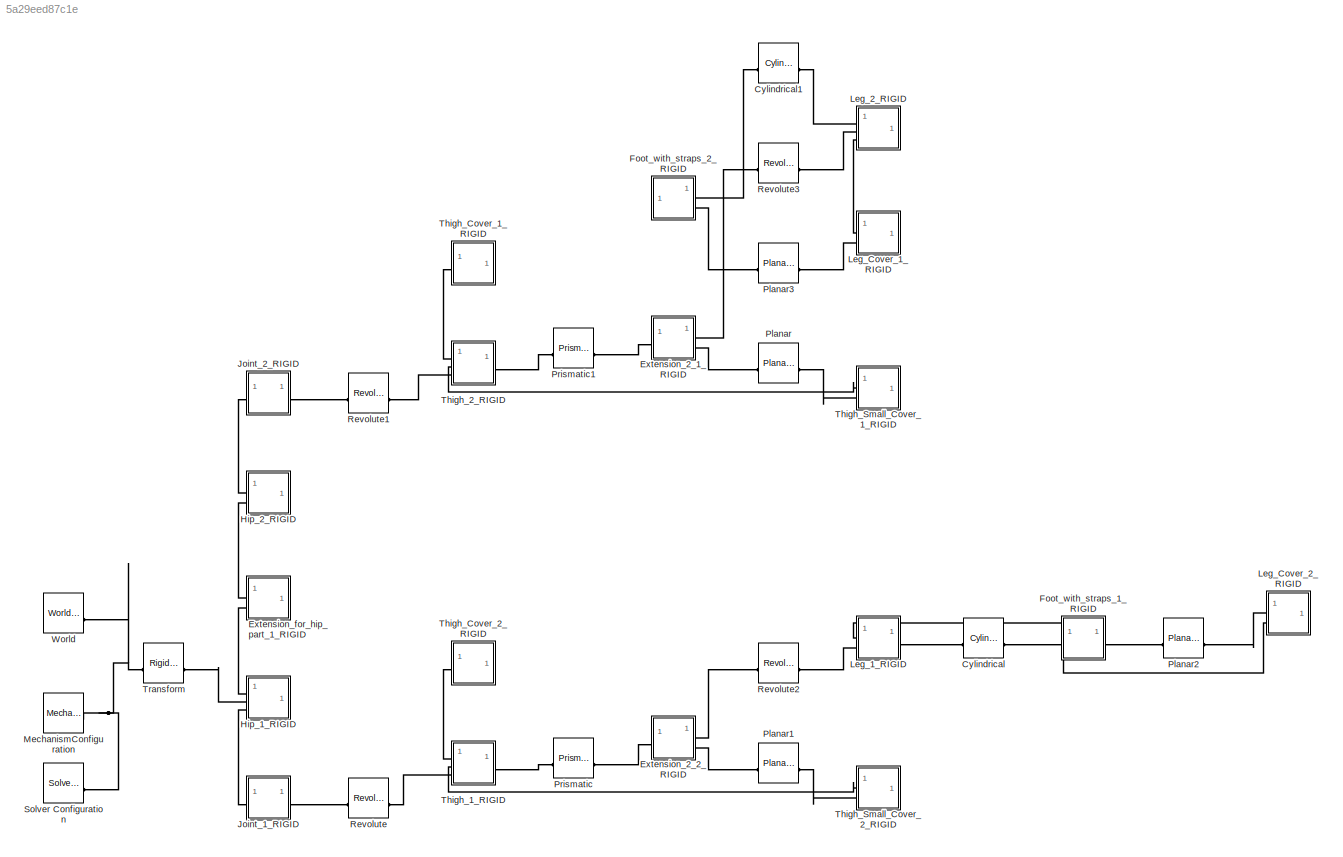
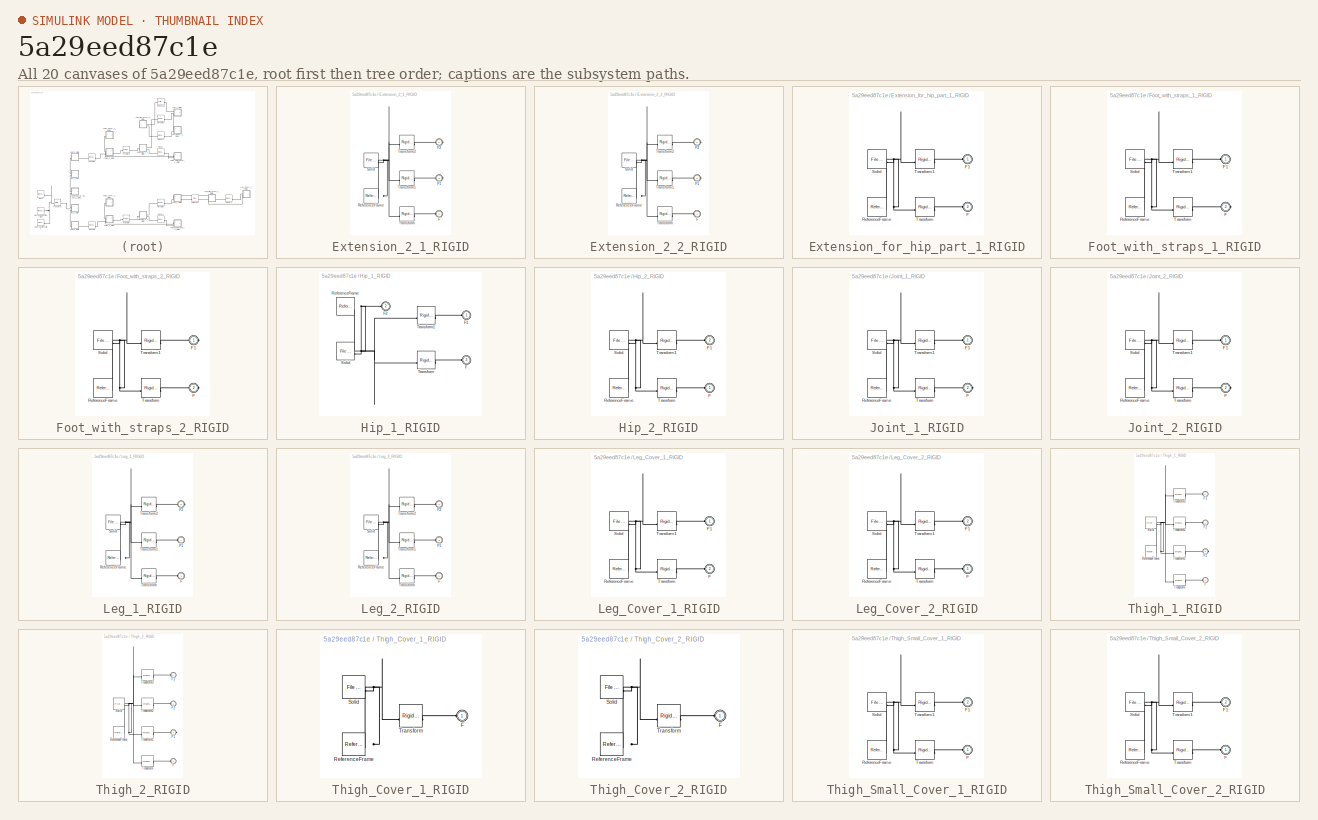
[diagram: thumbnail index - all 20 canvases of the model, root first then tree order]
MODEL slx_5a29eed87c1e
KIND model
CONFIG AbsTol = auto
CONFIG EnableMultiTasking = off
CONFIG FixedStep = auto
CONFIG MaxStep = auto
CONFIG MinStep = auto
CONFIG RelTol = 1e-3
CONFIG SampleTimeConstraint = Unconstrained
CONFIG SolverName = VariableStepAuto
CONFIG StartTime = 0.0
CONFIG StopTime = 10.0
WORKSPACE source: external: MATLAB File  (data not in archive)
BLOCK [Reference] Cylindrical  REF=sm_lib/Joints/Cylindrical
Joint
  SourceBlock = sm_lib/Joints/Cylindrical\nJoint
  SourceType = Cylindrical\nJoint
BLOCK [Reference] Cylindrical1  REF=sm_lib/Joints/Cylindrical
Joint
  SourceBlock = sm_lib/Joints/Cylindrical\nJoint
  SourceType = Cylindrical\nJoint
BLOCK [SubSystem] Extension_2_1_RIGID
BLOCK [PMIOPort] Extension_2_1_RIGID/F
  Side = Left
BLOCK [PMIOPort] Extension_2_1_RIGID/F1
  Port = 3
  Side = Right
BLOCK [PMIOPort] Extension_2_1_RIGID/F2
  Port = 2
  Side = Right
BLOCK [Reference] Extension_2_1_RIGID/ReferenceFrame  REF=sm_lib/Frames and
Transforms/Reference
Frame
  SourceBlock = sm_lib/Frames and\nTransforms/Reference\nFrame
  SourceType = Reference\nFrame
BLOCK [Reference] Extension_2_1_RIGID/Solid  REF=sm_lib/Body Elements/File Solid
  SourceBlock = sm_lib/Body Elements/File Solid
  SourceType = File Solid
BLOCK [Reference] Extension_2_1_RIGID/Transform  REF=sm_lib/Frames and
Transforms/Rigid
Transform
  SourceBlock = sm_lib/Frames and\nTransforms/Rigid\nTransform
  SourceType = Rigid\nTransform
BLOCK [Reference] Extension_2_1_RIGID/Transform1  REF=sm_lib/Frames and
Transforms/Rigid
Transform
  SourceBlock = sm_lib/Frames and\nTransforms/Rigid\nTransform
  SourceType = Rigid\nTransform
BLOCK [Reference] Extension_2_1_RIGID/Transform2  REF=sm_lib/Frames and
Transforms/Rigid
Transform
  SourceBlock = sm_lib/Frames and\nTransforms/Rigid\nTransform
  SourceType = Rigid\nTransform
BLOCK [SubSystem] Extension_2_2_RIGID
BLOCK [PMIOPort] Extension_2_2_RIGID/F
  Side = Left
BLOCK [PMIOPort] Extension_2_2_RIGID/F1
  Port = 3
  Side = Right
BLOCK [PMIOPort] Extension_2_2_RIGID/F2
  Port = 2
  Side = Right
BLOCK [Reference] Extension_2_2_RIGID/ReferenceFrame  REF=sm_lib/Frames and
Transforms/Reference
Frame
  SourceBlock = sm_lib/Frames and\nTransforms/Reference\nFrame
  SourceType = Reference\nFrame
BLOCK [Reference] Extension_2_2_RIGID/Solid  REF=sm_lib/Body Elements/File Solid
  SourceBlock = sm_lib/Body Elements/File Solid
  SourceType = File Solid
BLOCK [Reference] Extension_2_2_RIGID/Transform  REF=sm_lib/Frames and
Transforms/Rigid
Transform
  SourceBlock = sm_lib/Frames and\nTransforms/Rigid\nTransform
  SourceType = Rigid\nTransform
BLOCK [Reference] Extension_2_2_RIGID/Transform1  REF=sm_lib/Frames and
Transforms/Rigid
Transform
  SourceBlock = sm_lib/Frames and\nTransforms/Rigid\nTransform
  SourceType = Rigid\nTransform
BLOCK [Reference] Extension_2_2_RIGID/Transform2  REF=sm_lib/Frames and
Transforms/Rigid
Transform
  SourceBlock = sm_lib/Frames and\nTransforms/Rigid\nTransform
  SourceType = Rigid\nTransform
BLOCK [SubSystem] Extension_for_hip_part_1_RIGID
BLOCK [PMIOPort] Extension_for_hip_part_1_RIGID/F
  Port = 2
  Side = Left
BLOCK [PMIOPort] Extension_for_hip_part_1_RIGID/F1
  Side = Left
BLOCK [Reference] Extension_for_hip_part_1_RIGID/ReferenceFrame  REF=sm_lib/Frames and
Transforms/Reference
Frame
  SourceBlock = sm_lib/Frames and\nTransforms/Reference\nFrame
  SourceType = Reference\nFrame
BLOCK [Reference] Extension_for_hip_part_1_RIGID/Solid  REF=sm_lib/Body Elements/File Solid
  SourceBlock = sm_lib/Body Elements/File Solid
  SourceType = File Solid
BLOCK [Reference] Extension_for_hip_part_1_RIGID/Transform  REF=sm_lib/Frames and
Transforms/Rigid
Transform
  SourceBlock = sm_lib/Frames and\nTransforms/Rigid\nTransform
  SourceType = Rigid\nTransform
BLOCK [Reference] Extension_for_hip_part_1_RIGID/Transform1  REF=sm_lib/Frames and
Transforms/Rigid
Transform
  SourceBlock = sm_lib/Frames and\nTransforms/Rigid\nTransform
  SourceType = Rigid\nTransform
BLOCK [SubSystem] Foot_with_straps_1_RIGID
BLOCK [PMIOPort] Foot_with_straps_1_RIGID/F
  Port = 2
  Side = Right
BLOCK [PMIOPort] Foot_with_straps_1_RIGID/F1
  Side = Left
BLOCK [Reference] Foot_with_straps_1_RIGID/ReferenceFrame  REF=sm_lib/Frames and
Transforms/Reference
Frame
  SourceBlock = sm_lib/Frames and\nTransforms/Reference\nFrame
  SourceType = Reference\nFrame
BLOCK [Reference] Foot_with_straps_1_RIGID/Solid  REF=sm_lib/Body Elements/File Solid
  SourceBlock = sm_lib/Body Elements/File Solid
  SourceType = File Solid
BLOCK [Reference] Foot_with_straps_1_RIGID/Transform  REF=sm_lib/Frames and
Transforms/Rigid
Transform
  SourceBlock = sm_lib/Frames and\nTransforms/Rigid\nTransform
  SourceType = Rigid\nTransform
BLOCK [Reference] Foot_with_straps_1_RIGID/Transform1  REF=sm_lib/Frames and
Transforms/Rigid
Transform
  SourceBlock = sm_lib/Frames and\nTransforms/Rigid\nTransform
  SourceType = Rigid\nTransform
BLOCK [SubSystem] Foot_with_straps_2_RIGID
BLOCK [PMIOPort] Foot_with_straps_2_RIGID/F
  Port = 2
  Side = Right
BLOCK [PMIOPort] Foot_with_straps_2_RIGID/F1
  Side = Right
BLOCK [Reference] Foot_with_straps_2_RIGID/ReferenceFrame  REF=sm_lib/Frames and
Transforms/Reference
Frame
  SourceBlock = sm_lib/Frames and\nTransforms/Reference\nFrame
  SourceType = Reference\nFrame
BLOCK [Reference] Foot_with_straps_2_RIGID/Solid  REF=sm_lib/Body Elements/File Solid
  SourceBlock = sm_lib/Body Elements/File Solid
  SourceType = File Solid
BLOCK [Reference] Foot_with_straps_2_RIGID/Transform  REF=sm_lib/Frames and
Transforms/Rigid
Transform
  SourceBlock = sm_lib/Frames and\nTransforms/Rigid\nTransform
  SourceType = Rigid\nTransform
BLOCK [Reference] Foot_with_straps_2_RIGID/Transform1  REF=sm_lib/Frames and
Transforms/Rigid
Transform
  SourceBlock = sm_lib/Frames and\nTransforms/Rigid\nTransform
  SourceType = Rigid\nTransform
BLOCK [SubSystem] Hip_1_RIGID
BLOCK [PMIOPort] Hip_1_RIGID/F
  Port = 3
  Side = Left
BLOCK [PMIOPort] Hip_1_RIGID/F1
  Side = Left
BLOCK [PMIOPort] Hip_1_RIGID/F2
  Port = 2
  Side = Left
BLOCK [Reference] Hip_1_RIGID/ReferenceFrame  REF=sm_lib/Frames and
Transforms/Reference
Frame
  SourceBlock = sm_lib/Frames and\nTransforms/Reference\nFrame
  SourceType = Reference\nFrame
BLOCK [Reference] Hip_1_RIGID/Solid  REF=sm_lib/Body Elements/File Solid
  SourceBlock = sm_lib/Body Elements/File Solid
  SourceType = File Solid
BLOCK [Reference] Hip_1_RIGID/Transform  REF=sm_lib/Frames and
Transforms/Rigid
Transform
  SourceBlock = sm_lib/Frames and\nTransforms/Rigid\nTransform
  SourceType = Rigid\nTransform
BLOCK [Reference] Hip_1_RIGID/Transform1  REF=sm_lib/Frames and
Transforms/Rigid
Transform
  SourceBlock = sm_lib/Frames and\nTransforms/Rigid\nTransform
  SourceType = Rigid\nTransform
BLOCK [SubSystem] Hip_2_RIGID
BLOCK [PMIOPort] Hip_2_RIGID/F
  Side = Left
BLOCK [PMIOPort] Hip_2_RIGID/F1
  Port = 2
  Side = Left
BLOCK [Reference] Hip_2_RIGID/ReferenceFrame  REF=sm_lib/Frames and
Transforms/Reference
Frame
  SourceBlock = sm_lib/Frames and\nTransforms/Reference\nFrame
  SourceType = Reference\nFrame
BLOCK [Reference] Hip_2_RIGID/Solid  REF=sm_lib/Body Elements/File Solid
  SourceBlock = sm_lib/Body Elements/File Solid
  SourceType = File Solid
BLOCK [Reference] Hip_2_RIGID/Transform  REF=sm_lib/Frames and
Transforms/Rigid
Transform
  SourceBlock = sm_lib/Frames and\nTransforms/Rigid\nTransform
  SourceType = Rigid\nTransform
BLOCK [Reference] Hip_2_RIGID/Transform1  REF=sm_lib/Frames and
Transforms/Rigid
Transform
  SourceBlock = sm_lib/Frames and\nTransforms/Rigid\nTransform
  SourceType = Rigid\nTransform
BLOCK [SubSystem] Joint_1_RIGID
BLOCK [PMIOPort] Joint_1_RIGID/F
  Port = 2
  Side = Right
BLOCK [PMIOPort] Joint_1_RIGID/F1
  Side = Left
BLOCK [Reference] Joint_1_RIGID/ReferenceFrame  REF=sm_lib/Frames and
Transforms/Reference
Frame
  SourceBlock = sm_lib/Frames and\nTransforms/Reference\nFrame
  SourceType = Reference\nFrame
BLOCK [Reference] Joint_1_RIGID/Solid  REF=sm_lib/Body Elements/File Solid
  SourceBlock = sm_lib/Body Elements/File Solid
  SourceType = File Solid
BLOCK [Reference] Joint_1_RIGID/Transform  REF=sm_lib/Frames and
Transforms/Rigid
Transform
  SourceBlock = sm_lib/Frames and\nTransforms/Rigid\nTransform
  SourceType = Rigid\nTransform
BLOCK [Reference] Joint_1_RIGID/Transform1  REF=sm_lib/Frames and
Transforms/Rigid
Transform
  SourceBlock = sm_lib/Frames and\nTransforms/Rigid\nTransform
  SourceType = Rigid\nTransform
BLOCK [SubSystem] Joint_2_RIGID
BLOCK [PMIOPort] Joint_2_RIGID/F
  Port = 2
  Side = Right
BLOCK [PMIOPort] Joint_2_RIGID/F1
  Side = Left
BLOCK [Reference] Joint_2_RIGID/ReferenceFrame  REF=sm_lib/Frames and
Transforms/Reference
Frame
  SourceBlock = sm_lib/Frames and\nTransforms/Reference\nFrame
  SourceType = Reference\nFrame
BLOCK [Reference] Joint_2_RIGID/Solid  REF=sm_lib/Body Elements/File Solid
  SourceBlock = sm_lib/Body Elements/File Solid
  SourceType = File Solid
BLOCK [Reference] Joint_2_RIGID/Transform  REF=sm_lib/Frames and
Transforms/Rigid
Transform
  SourceBlock = sm_lib/Frames and\nTransforms/Rigid\nTransform
  SourceType = Rigid\nTransform
BLOCK [Reference] Joint_2_RIGID/Transform1  REF=sm_lib/Frames and
Transforms/Rigid
Transform
  SourceBlock = sm_lib/Frames and\nTransforms/Rigid\nTransform
  SourceType = Rigid\nTransform
BLOCK [SubSystem] Leg_1_RIGID
BLOCK [PMIOPort] Leg_1_RIGID/F
  Port = 2
  Side = Left
BLOCK [PMIOPort] Leg_1_RIGID/F1
  Side = Left
BLOCK [PMIOPort] Leg_1_RIGID/F2
  Port = 3
  Side = Right
BLOCK [Reference] Leg_1_RIGID/ReferenceFrame  REF=sm_lib/Frames and
Transforms/Reference
Frame
  SourceBlock = sm_lib/Frames and\nTransforms/Reference\nFrame
  SourceType = Reference\nFrame
BLOCK [Reference] Leg_1_RIGID/Solid  REF=sm_lib/Body Elements/File Solid
  SourceBlock = sm_lib/Body Elements/File Solid
  SourceType = File Solid
BLOCK [Reference] Leg_1_RIGID/Transform  REF=sm_lib/Frames and
Transforms/Rigid
Transform
  SourceBlock = sm_lib/Frames and\nTransforms/Rigid\nTransform
  SourceType = Rigid\nTransform
BLOCK [Reference] Leg_1_RIGID/Transform1  REF=sm_lib/Frames and
Transforms/Rigid
Transform
  SourceBlock = sm_lib/Frames and\nTransforms/Rigid\nTransform
  SourceType = Rigid\nTransform
BLOCK [Reference] Leg_1_RIGID/Transform2  REF=sm_lib/Frames and
Transforms/Rigid
Transform
  SourceBlock = sm_lib/Frames and\nTransforms/Rigid\nTransform
  SourceType = Rigid\nTransform
BLOCK [SubSystem] Leg_2_RIGID
BLOCK [PMIOPort] Leg_2_RIGID/F
  Port = 2
  Side = Left
BLOCK [PMIOPort] Leg_2_RIGID/F1
  Port = 3
  Side = Left
BLOCK [PMIOPort] Leg_2_RIGID/F2
  Side = Left
BLOCK [Reference] Leg_2_RIGID/ReferenceFrame  REF=sm_lib/Frames and
Transforms/Reference
Frame
  SourceBlock = sm_lib/Frames and\nTransforms/Reference\nFrame
  SourceType = Reference\nFrame
BLOCK [Reference] Leg_2_RIGID/Solid  REF=sm_lib/Body Elements/File Solid
  SourceBlock = sm_lib/Body Elements/File Solid
  SourceType = File Solid
BLOCK [Reference] Leg_2_RIGID/Transform  REF=sm_lib/Frames and
Transforms/Rigid
Transform
  SourceBlock = sm_lib/Frames and\nTransforms/Rigid\nTransform
  SourceType = Rigid\nTransform
BLOCK [Reference] Leg_2_RIGID/Transform1  REF=sm_lib/Frames and
Transforms/Rigid
Transform
  SourceBlock = sm_lib/Frames and\nTransforms/Rigid\nTransform
  SourceType = Rigid\nTransform
BLOCK [Reference] Leg_2_RIGID/Transform2  REF=sm_lib/Frames and
Transforms/Rigid
Transform
  SourceBlock = sm_lib/Frames and\nTransforms/Rigid\nTransform
  SourceType = Rigid\nTransform
BLOCK [SubSystem] Leg_Cover_1_RIGID
BLOCK [PMIOPort] Leg_Cover_1_RIGID/F
  Port = 2
  Side = Left
BLOCK [PMIOPort] Leg_Cover_1_RIGID/F1
  Side = Left
BLOCK [Reference] Leg_Cover_1_RIGID/ReferenceFrame  REF=sm_lib/Frames and
Transforms/Reference
Frame
  SourceBlock = sm_lib/Frames and\nTransforms/Reference\nFrame
  SourceType = Reference\nFrame
BLOCK [Reference] Leg_Cover_1_RIGID/Solid  REF=sm_lib/Body Elements/File Solid
  SourceBlock = sm_lib/Body Elements/File Solid
  SourceType = File Solid
BLOCK [Reference] Leg_Cover_1_RIGID/Transform  REF=sm_lib/Frames and
Transforms/Rigid
Transform
  SourceBlock = sm_lib/Frames and\nTransforms/Rigid\nTransform
  SourceType = Rigid\nTransform
BLOCK [Reference] Leg_Cover_1_RIGID/Transform1  REF=sm_lib/Frames and
Transforms/Rigid
Transform
  SourceBlock = sm_lib/Frames and\nTransforms/Rigid\nTransform
  SourceType = Rigid\nTransform
BLOCK [SubSystem] Leg_Cover_2_RIGID
BLOCK [PMIOPort] Leg_Cover_2_RIGID/F
  Side = Left
BLOCK [PMIOPort] Leg_Cover_2_RIGID/F1
  Port = 2
  Side = Left
BLOCK [Reference] Leg_Cover_2_RIGID/ReferenceFrame  REF=sm_lib/Frames and
Transforms/Reference
Frame
  SourceBlock = sm_lib/Frames and\nTransforms/Reference\nFrame
  SourceType = Reference\nFrame
BLOCK [Reference] Leg_Cover_2_RIGID/Solid  REF=sm_lib/Body Elements/File Solid
  SourceBlock = sm_lib/Body Elements/File Solid
  SourceType = File Solid
BLOCK [Reference] Leg_Cover_2_RIGID/Transform  REF=sm_lib/Frames and
Transforms/Rigid
Transform
  SourceBlock = sm_lib/Frames and\nTransforms/Rigid\nTransform
  SourceType = Rigid\nTransform
BLOCK [Reference] Leg_Cover_2_RIGID/Transform1  REF=sm_lib/Frames and
Transforms/Rigid
Transform
  SourceBlock = sm_lib/Frames and\nTransforms/Rigid\nTransform
  SourceType = Rigid\nTransform
BLOCK [Reference] MechanismConfiguration  REF=sm_lib/Utilities/Mechanism
Configuration
  SourceBlock = sm_lib/Utilities/Mechanism\nConfiguration
  SourceType = Mechanism\nConfiguration
BLOCK [Reference] Planar  REF=sm_lib/Joints/Planar Joint
  SourceBlock = sm_lib/Joints/Planar Joint
  SourceType = Planar Joint
BLOCK [Reference] Planar1  REF=sm_lib/Joints/Planar Joint
  SourceBlock = sm_lib/Joints/Planar Joint
  SourceType = Planar Joint
BLOCK [Reference] Planar2  REF=sm_lib/Joints/Planar Joint
  SourceBlock = sm_lib/Joints/Planar Joint
  SourceType = Planar Joint
BLOCK [Reference] Planar3  REF=sm_lib/Joints/Planar Joint
  SourceBlock = sm_lib/Joints/Planar Joint
  SourceType = Planar Joint
BLOCK [Reference] Prismatic  REF=sm_lib/Joints/Prismatic
Joint
  SourceBlock = sm_lib/Joints/Prismatic\nJoint
  SourceType = Prismatic\nJoint
BLOCK [Reference] Prismatic1  REF=sm_lib/Joints/Prismatic
Joint
  SourceBlock = sm_lib/Joints/Prismatic\nJoint
  SourceType = Prismatic\nJoint
BLOCK [Reference] Revolute  REF=sm_lib/Joints/Revolute Joint
  SourceBlock = sm_lib/Joints/Revolute Joint
  SourceType = Revolute Joint
BLOCK [Reference] Revolute1  REF=sm_lib/Joints/Revolute Joint
  SourceBlock = sm_lib/Joints/Revolute Joint
  SourceType = Revolute Joint
BLOCK [Reference] Revolute2  REF=sm_lib/Joints/Revolute Joint
  SourceBlock = sm_lib/Joints/Revolute Joint
  SourceType = Revolute Joint
BLOCK [Reference] Revolute3  REF=sm_lib/Joints/Revolute Joint
  SourceBlock = sm_lib/Joints/Revolute Joint
  SourceType = Revolute Joint
BLOCK [Reference] Solver Configuration  REF=nesl_utility/Solver
Configuration
  SourceBlock = nesl_utility/Solver\nConfiguration
  SourceType = Solver\nConfiguration
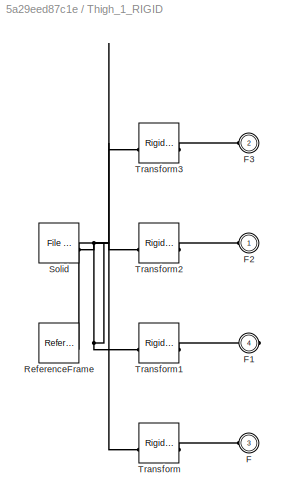
BLOCK [SubSystem] Thigh_1_RIGID
BLOCK [PMIOPort] Thigh_1_RIGID/F
  Port = 3
  Side = Left
BLOCK [PMIOPort] Thigh_1_RIGID/F1
  Port = 4
  Side = Right
BLOCK [PMIOPort] Thigh_1_RIGID/F2
  Side = Left
BLOCK [PMIOPort] Thigh_1_RIGID/F3
  Port = 2
  Side = Left
BLOCK [Reference] Thigh_1_RIGID/ReferenceFrame  REF=sm_lib/Frames and
Transforms/Reference
Frame
  SourceBlock = sm_lib/Frames and\nTransforms/Reference\nFrame
  SourceType = Reference\nFrame
BLOCK [Reference] Thigh_1_RIGID/Solid  REF=sm_lib/Body Elements/File Solid
  SourceBlock = sm_lib/Body Elements/File Solid
  SourceType = File Solid
BLOCK [Reference] Thigh_1_RIGID/Transform  REF=sm_lib/Frames and
Transforms/Rigid
Transform
  SourceBlock = sm_lib/Frames and\nTransforms/Rigid\nTransform
  SourceType = Rigid\nTransform
BLOCK [Reference] Thigh_1_RIGID/Transform1  REF=sm_lib/Frames and
Transforms/Rigid
Transform
  SourceBlock = sm_lib/Frames and\nTransforms/Rigid\nTransform
  SourceType = Rigid\nTransform
BLOCK [Reference] Thigh_1_RIGID/Transform2  REF=sm_lib/Frames and
Transforms/Rigid
Transform
  SourceBlock = sm_lib/Frames and\nTransforms/Rigid\nTransform
  SourceType = Rigid\nTransform
BLOCK [Reference] Thigh_1_RIGID/Transform3  REF=sm_lib/Frames and
Transforms/Rigid
Transform
  SourceBlock = sm_lib/Frames and\nTransforms/Rigid\nTransform
  SourceType = Rigid\nTransform
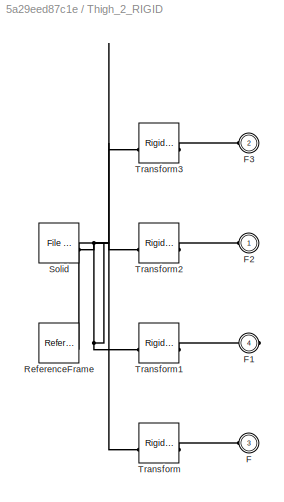
BLOCK [SubSystem] Thigh_2_RIGID
BLOCK [PMIOPort] Thigh_2_RIGID/F
  Port = 3
  Side = Left
BLOCK [PMIOPort] Thigh_2_RIGID/F1
  Port = 4
  Side = Right
BLOCK [PMIOPort] Thigh_2_RIGID/F2
  Side = Left
BLOCK [PMIOPort] Thigh_2_RIGID/F3
  Port = 2
  Side = Left
BLOCK [Reference] Thigh_2_RIGID/ReferenceFrame  REF=sm_lib/Frames and
Transforms/Reference
Frame
  SourceBlock = sm_lib/Frames and\nTransforms/Reference\nFrame
  SourceType = Reference\nFrame
BLOCK [Reference] Thigh_2_RIGID/Solid  REF=sm_lib/Body Elements/File Solid
  SourceBlock = sm_lib/Body Elements/File Solid
  SourceType = File Solid
BLOCK [Reference] Thigh_2_RIGID/Transform  REF=sm_lib/Frames and
Transforms/Rigid
Transform
  SourceBlock = sm_lib/Frames and\nTransforms/Rigid\nTransform
  SourceType = Rigid\nTransform
BLOCK [Reference] Thigh_2_RIGID/Transform1  REF=sm_lib/Frames and
Transforms/Rigid
Transform
  SourceBlock = sm_lib/Frames and\nTransforms/Rigid\nTransform
  SourceType = Rigid\nTransform
BLOCK [Reference] Thigh_2_RIGID/Transform2  REF=sm_lib/Frames and
Transforms/Rigid
Transform
  SourceBlock = sm_lib/Frames and\nTransforms/Rigid\nTransform
  SourceType = Rigid\nTransform
BLOCK [Reference] Thigh_2_RIGID/Transform3  REF=sm_lib/Frames and
Transforms/Rigid
Transform
  SourceBlock = sm_lib/Frames and\nTransforms/Rigid\nTransform
  SourceType = Rigid\nTransform
BLOCK [SubSystem] Thigh_Cover_1_RIGID
BLOCK [PMIOPort] Thigh_Cover_1_RIGID/F
  Side = Left
BLOCK [Reference] Thigh_Cover_1_RIGID/ReferenceFrame  REF=sm_lib/Frames and
Transforms/Reference
Frame
  SourceBlock = sm_lib/Frames and\nTransforms/Reference\nFrame
  SourceType = Reference\nFrame
BLOCK [Reference] Thigh_Cover_1_RIGID/Solid  REF=sm_lib/Body Elements/File Solid
  SourceBlock = sm_lib/Body Elements/File Solid
  SourceType = File Solid
BLOCK [Reference] Thigh_Cover_1_RIGID/Transform  REF=sm_lib/Frames and
Transforms/Rigid
Transform
  SourceBlock = sm_lib/Frames and\nTransforms/Rigid\nTransform
  SourceType = Rigid\nTransform
BLOCK [SubSystem] Thigh_Cover_2_RIGID
BLOCK [PMIOPort] Thigh_Cover_2_RIGID/F
  Side = Left
BLOCK [Reference] Thigh_Cover_2_RIGID/ReferenceFrame  REF=sm_lib/Frames and
Transforms/Reference
Frame
  SourceBlock = sm_lib/Frames and\nTransforms/Reference\nFrame
  SourceType = Reference\nFrame
BLOCK [Reference] Thigh_Cover_2_RIGID/Solid  REF=sm_lib/Body Elements/File Solid
  SourceBlock = sm_lib/Body Elements/File Solid
  SourceType = File Solid
BLOCK [Reference] Thigh_Cover_2_RIGID/Transform  REF=sm_lib/Frames and
Transforms/Rigid
Transform
  SourceBlock = sm_lib/Frames and\nTransforms/Rigid\nTransform
  SourceType = Rigid\nTransform
BLOCK [SubSystem] Thigh_Small_Cover_1_RIGID
BLOCK [PMIOPort] Thigh_Small_Cover_1_RIGID/F
  Side = Left
BLOCK [PMIOPort] Thigh_Small_Cover_1_RIGID/F1
  Port = 2
  Side = Left
BLOCK [Reference] Thigh_Small_Cover_1_RIGID/ReferenceFrame  REF=sm_lib/Frames and
Transforms/Reference
Frame
  SourceBlock = sm_lib/Frames and\nTransforms/Reference\nFrame
  SourceType = Reference\nFrame
BLOCK [Reference] Thigh_Small_Cover_1_RIGID/Solid  REF=sm_lib/Body Elements/File Solid
  SourceBlock = sm_lib/Body Elements/File Solid
  SourceType = File Solid
BLOCK [Reference] Thigh_Small_Cover_1_RIGID/Transform  REF=sm_lib/Frames and
Transforms/Rigid
Transform
  SourceBlock = sm_lib/Frames and\nTransforms/Rigid\nTransform
  SourceType = Rigid\nTransform
BLOCK [Reference] Thigh_Small_Cover_1_RIGID/Transform1  REF=sm_lib/Frames and
Transforms/Rigid
Transform
  SourceBlock = sm_lib/Frames and\nTransforms/Rigid\nTransform
  SourceType = Rigid\nTransform
BLOCK [SubSystem] Thigh_Small_Cover_2_RIGID
BLOCK [PMIOPort] Thigh_Small_Cover_2_RIGID/F
  Side = Left
BLOCK [PMIOPort] Thigh_Small_Cover_2_RIGID/F1
  Port = 2
  Side = Left
BLOCK [Reference] Thigh_Small_Cover_2_RIGID/ReferenceFrame  REF=sm_lib/Frames and
Transforms/Reference
Frame
  SourceBlock = sm_lib/Frames and\nTransforms/Reference\nFrame
  SourceType = Reference\nFrame
BLOCK [Reference] Thigh_Small_Cover_2_RIGID/Solid  REF=sm_lib/Body Elements/File Solid
  SourceBlock = sm_lib/Body Elements/File Solid
  SourceType = File Solid
BLOCK [Reference] Thigh_Small_Cover_2_RIGID/Transform  REF=sm_lib/Frames and
Transforms/Rigid
Transform
  SourceBlock = sm_lib/Frames and\nTransforms/Rigid\nTransform
  SourceType = Rigid\nTransform
BLOCK [Reference] Thigh_Small_Cover_2_RIGID/Transform1  REF=sm_lib/Frames and
Transforms/Rigid
Transform
  SourceBlock = sm_lib/Frames and\nTransforms/Rigid\nTransform
  SourceType = Rigid\nTransform
BLOCK [Reference] Transform  REF=sm_lib/Frames and
Transforms/Rigid
Transform
  SourceBlock = sm_lib/Frames and\nTransforms/Rigid\nTransform
  SourceType = Rigid\nTransform
BLOCK [Reference] World  REF=sm_lib/Frames and
Transforms/World Frame
  SourceBlock = sm_lib/Frames and\nTransforms/World Frame
  SourceType = World Frame
PLINE Cylindrical1:LConn1 -- Foot_with_straps_2_RIGID:RConn1
PLINE Cylindrical1:RConn1 -- Leg_2_RIGID:LConn1
PLINE Cylindrical:LConn1 -- Leg_1_RIGID:RConn1
PLINE Cylindrical:RConn1 -- Foot_with_straps_1_RIGID:LConn1
PLINE Extension_2_1_RIGID/F1:RConn1 -- Extension_2_1_RIGID/Transform1:RConn1
PLINE Extension_2_1_RIGID/F2:RConn1 -- Extension_2_1_RIGID/Transform2:RConn1
PLINE Extension_2_1_RIGID/F:RConn1 -- Extension_2_1_RIGID/Transform:RConn1
PNET net1: Extension_2_1_RIGID/ReferenceFrame:RConn1 -- Extension_2_1_RIGID/Solid:RConn1 -- Extension_2_1_RIGID/Transform1:LConn1 -- Extension_2_1_RIGID/Transform2:LConn1 -- Extension_2_1_RIGID/Transform:LConn1
PLINE Extension_2_1_RIGID:LConn1 -- Prismatic1:RConn1
PLINE Extension_2_1_RIGID:RConn1 -- Revolute3:LConn1
PLINE Extension_2_1_RIGID:RConn2 -- Planar:LConn1
PLINE Extension_2_2_RIGID/F1:RConn1 -- Extension_2_2_RIGID/Transform1:RConn1
PLINE Extension_2_2_RIGID/F2:RConn1 -- Extension_2_2_RIGID/Transform2:RConn1
PLINE Extension_2_2_RIGID/F:RConn1 -- Extension_2_2_RIGID/Transform:RConn1
PNET net2: Extension_2_2_RIGID/ReferenceFrame:RConn1 -- Extension_2_2_RIGID/Solid:RConn1 -- Extension_2_2_RIGID/Transform1:LConn1 -- Extension_2_2_RIGID/Transform2:LConn1 -- Extension_2_2_RIGID/Transform:LConn1
PLINE Extension_2_2_RIGID:LConn1 -- Prismatic:RConn1
PLINE Extension_2_2_RIGID:RConn1 -- Revolute2:LConn1
PLINE Extension_2_2_RIGID:RConn2 -- Planar1:LConn1
PLINE Extension_for_hip_part_1_RIGID/F1:RConn1 -- Extension_for_hip_part_1_RIGID/Transform1:RConn1
PLINE Extension_for_hip_part_1_RIGID/F:RConn1 -- Extension_for_hip_part_1_RIGID/Transform:RConn1
PNET net3: Extension_for_hip_part_1_RIGID/ReferenceFrame:RConn1 -- Extension_for_hip_part_1_RIGID/Solid:RConn1 -- Extension_for_hip_part_1_RIGID/Transform1:LConn1 -- Extension_for_hip_part_1_RIGID/Transform:LConn1
PLINE Extension_for_hip_part_1_RIGID:LConn1 -- Hip_2_RIGID:LConn2
PLINE Extension_for_hip_part_1_RIGID:LConn2 -- Hip_1_RIGID:LConn1
PLINE Foot_with_straps_1_RIGID/F1:RConn1 -- Foot_with_straps_1_RIGID/Transform1:RConn1
PLINE Foot_with_straps_1_RIGID/F:RConn1 -- Foot_with_straps_1_RIGID/Transform:RConn1
PNET net4: Foot_with_straps_1_RIGID/ReferenceFrame:RConn1 -- Foot_with_straps_1_RIGID/Solid:RConn1 -- Foot_with_straps_1_RIGID/Transform1:LConn1 -- Foot_with_straps_1_RIGID/Transform:LConn1
PLINE Foot_with_straps_1_RIGID:RConn1 -- Planar2:LConn1
PLINE Foot_with_straps_2_RIGID/F1:RConn1 -- Foot_with_straps_2_RIGID/Transform1:RConn1
PLINE Foot_with_straps_2_RIGID/F:RConn1 -- Foot_with_straps_2_RIGID/Transform:RConn1
PNET net5: Foot_with_straps_2_RIGID/ReferenceFrame:RConn1 -- Foot_with_straps_2_RIGID/Solid:RConn1 -- Foot_with_straps_2_RIGID/Transform1:LConn1 -- Foot_with_straps_2_RIGID/Transform:LConn1
PLINE Foot_with_straps_2_RIGID:RConn2 -- Planar3:LConn1
PLINE Hip_1_RIGID/F1:RConn1 -- Hip_1_RIGID/Transform1:RConn1
PNET net6: Hip_1_RIGID/F2:RConn1 -- Hip_1_RIGID/ReferenceFrame:RConn1 -- Hip_1_RIGID/Solid:RConn1 -- Hip_1_RIGID/Transform1:LConn1 -- Hip_1_RIGID/Transform:LConn1
PLINE Hip_1_RIGID/F:RConn1 -- Hip_1_RIGID/Transform:RConn1
PLINE Hip_1_RIGID:LConn2 -- Transform:RConn1
PLINE Hip_1_RIGID:LConn3 -- Joint_1_RIGID:LConn1
PLINE Hip_2_RIGID/F1:RConn1 -- Hip_2_RIGID/Transform1:RConn1
PLINE Hip_2_RIGID/F:RConn1 -- Hip_2_RIGID/Transform:RConn1
PNET net7: Hip_2_RIGID/ReferenceFrame:RConn1 -- Hip_2_RIGID/Solid:RConn1 -- Hip_2_RIGID/Transform1:LConn1 -- Hip_2_RIGID/Transform:LConn1
PLINE Hip_2_RIGID:LConn1 -- Joint_2_RIGID:LConn1
PLINE Joint_1_RIGID/F1:RConn1 -- Joint_1_RIGID/Transform1:RConn1
PLINE Joint_1_RIGID/F:RConn1 -- Joint_1_RIGID/Transform:RConn1
PNET net8: Joint_1_RIGID/ReferenceFrame:RConn1 -- Joint_1_RIGID/Solid:RConn1 -- Joint_1_RIGID/Transform1:LConn1 -- Joint_1_RIGID/Transform:LConn1
PLINE Joint_1_RIGID:RConn1 -- Revolute:LConn1
PLINE Joint_2_RIGID/F1:RConn1 -- Joint_2_RIGID/Transform1:RConn1
PLINE Joint_2_RIGID/F:RConn1 -- Joint_2_RIGID/Transform:RConn1
PNET net9: Joint_2_RIGID/ReferenceFrame:RConn1 -- Joint_2_RIGID/Solid:RConn1 -- Joint_2_RIGID/Transform1:LConn1 -- Joint_2_RIGID/Transform:LConn1
PLINE Joint_2_RIGID:RConn1 -- Revolute1:LConn1
PLINE Leg_1_RIGID/F1:RConn1 -- Leg_1_RIGID/Transform1:RConn1
PLINE Leg_1_RIGID/F2:RConn1 -- Leg_1_RIGID/Transform2:RConn1
PLINE Leg_1_RIGID/F:RConn1 -- Leg_1_RIGID/Transform:RConn1
PNET net10: Leg_1_RIGID/ReferenceFrame:RConn1 -- Leg_1_RIGID/Solid:RConn1 -- Leg_1_RIGID/Transform1:LConn1 -- Leg_1_RIGID/Transform2:LConn1 -- Leg_1_RIGID/Transform:LConn1
PLINE Leg_1_RIGID:LConn1 -- Leg_Cover_2_RIGID:LConn2
PLINE Leg_1_RIGID:LConn2 -- Revolute2:RConn1
PLINE Leg_2_RIGID/F1:RConn1 -- Leg_2_RIGID/Transform1:RConn1
PLINE Leg_2_RIGID/F2:RConn1 -- Leg_2_RIGID/Transform2:RConn1
PLINE Leg_2_RIGID/F:RConn1 -- Leg_2_RIGID/Transform:RConn1
PNET net11: Leg_2_RIGID/ReferenceFrame:RConn1 -- Leg_2_RIGID/Solid:RConn1 -- Leg_2_RIGID/Transform1:LConn1 -- Leg_2_RIGID/Transform2:LConn1 -- Leg_2_RIGID/Transform:LConn1
PLINE Leg_2_RIGID:LConn2 -- Revolute3:RConn1
PLINE Leg_2_RIGID:LConn3 -- Leg_Cover_1_RIGID:LConn1
PLINE Leg_Cover_1_RIGID/F1:RConn1 -- Leg_Cover_1_RIGID/Transform1:RConn1
PLINE Leg_Cover_1_RIGID/F:RConn1 -- Leg_Cover_1_RIGID/Transform:RConn1
PNET net12: Leg_Cover_1_RIGID/ReferenceFrame:RConn1 -- Leg_Cover_1_RIGID/Solid:RConn1 -- Leg_Cover_1_RIGID/Transform1:LConn1 -- Leg_Cover_1_RIGID/Transform:LConn1
PLINE Leg_Cover_1_RIGID:LConn2 -- Planar3:RConn1
PLINE Leg_Cover_2_RIGID/F1:RConn1 -- Leg_Cover_2_RIGID/Transform1:RConn1
PLINE Leg_Cover_2_RIGID/F:RConn1 -- Leg_Cover_2_RIGID/Transform:RConn1
PNET net13: Leg_Cover_2_RIGID/ReferenceFrame:RConn1 -- Leg_Cover_2_RIGID/Solid:RConn1 -- Leg_Cover_2_RIGID/Transform1:LConn1 -- Leg_Cover_2_RIGID/Transform:LConn1
PLINE Leg_Cover_2_RIGID:LConn1 -- Planar2:RConn1
PNET net14: MechanismConfiguration:RConn1 -- Solver Configuration:RConn1 -- Transform:LConn1 -- World:RConn1
PLINE Planar1:RConn1 -- Thigh_Small_Cover_2_RIGID:LConn2
PLINE Planar:RConn1 -- Thigh_Small_Cover_1_RIGID:LConn2
PLINE Prismatic1:LConn1 -- Thigh_2_RIGID:RConn1
PLINE Prismatic:LConn1 -- Thigh_1_RIGID:RConn1
PLINE Revolute1:RConn1 -- Thigh_2_RIGID:LConn3
PLINE Revolute:RConn1 -- Thigh_1_RIGID:LConn3
PLINE Thigh_1_RIGID/F1:RConn1 -- Thigh_1_RIGID/Transform1:RConn1
PLINE Thigh_1_RIGID/F2:RConn1 -- Thigh_1_RIGID/Transform2:RConn1
PLINE Thigh_1_RIGID/F3:RConn1 -- Thigh_1_RIGID/Transform3:RConn1
PLINE Thigh_1_RIGID/F:RConn1 -- Thigh_1_RIGID/Transform:RConn1
PNET net15: Thigh_1_RIGID/ReferenceFrame:RConn1 -- Thigh_1_RIGID/Solid:RConn1 -- Thigh_1_RIGID/Transform1:LConn1 -- Thigh_1_RIGID/Transform2:LConn1 -- Thigh_1_RIGID/Transform3:LConn1 -- Thigh_1_RIGID/Transform:LConn1
PLINE Thigh_1_RIGID:LConn1 -- Thigh_Cover_2_RIGID:LConn1
PLINE Thigh_1_RIGID:LConn2 -- Thigh_Small_Cover_2_RIGID:LConn1
PLINE Thigh_2_RIGID/F1:RConn1 -- Thigh_2_RIGID/Transform1:RConn1
PLINE Thigh_2_RIGID/F2:RConn1 -- Thigh_2_RIGID/Transform2:RConn1
PLINE Thigh_2_RIGID/F3:RConn1 -- Thigh_2_RIGID/Transform3:RConn1
PLINE Thigh_2_RIGID/F:RConn1 -- Thigh_2_RIGID/Transform:RConn1
PNET net16: Thigh_2_RIGID/ReferenceFrame:RConn1 -- Thigh_2_RIGID/Solid:RConn1 -- Thigh_2_RIGID/Transform1:LConn1 -- Thigh_2_RIGID/Transform2:LConn1 -- Thigh_2_RIGID/Transform3:LConn1 -- Thigh_2_RIGID/Transform:LConn1
PLINE Thigh_2_RIGID:LConn1 -- Thigh_Cover_1_RIGID:LConn1
PLINE Thigh_2_RIGID:LConn2 -- Thigh_Small_Cover_1_RIGID:LConn1
PLINE Thigh_Cover_1_RIGID/F:RConn1 -- Thigh_Cover_1_RIGID/Transform:RConn1
PNET net17: Thigh_Cover_1_RIGID/ReferenceFrame:RConn1 -- Thigh_Cover_1_RIGID/Solid:RConn1 -- Thigh_Cover_1_RIGID/Transform:LConn1
PLINE Thigh_Cover_2_RIGID/F:RConn1 -- Thigh_Cover_2_RIGID/Transform:RConn1
PNET net18: Thigh_Cover_2_RIGID/ReferenceFrame:RConn1 -- Thigh_Cover_2_RIGID/Solid:RConn1 -- Thigh_Cover_2_RIGID/Transform:LConn1
PLINE Thigh_Small_Cover_1_RIGID/F1:RConn1 -- Thigh_Small_Cover_1_RIGID/Transform1:RConn1
PLINE Thigh_Small_Cover_1_RIGID/F:RConn1 -- Thigh_Small_Cover_1_RIGID/Transform:RConn1
PNET net19: Thigh_Small_Cover_1_RIGID/ReferenceFrame:RConn1 -- Thigh_Small_Cover_1_RIGID/Solid:RConn1 -- Thigh_Small_Cover_1_RIGID/Transform1:LConn1 -- Thigh_Small_Cover_1_RIGID/Transform:LConn1
PLINE Thigh_Small_Cover_2_RIGID/F1:RConn1 -- Thigh_Small_Cover_2_RIGID/Transform1:RConn1
PLINE Thigh_Small_Cover_2_RIGID/F:RConn1 -- Thigh_Small_Cover_2_RIGID/Transform:RConn1
PNET net20: Thigh_Small_Cover_2_RIGID/ReferenceFrame:RConn1 -- Thigh_Small_Cover_2_RIGID/Solid:RConn1 -- Thigh_Small_Cover_2_RIGID/Transform1:LConn1 -- Thigh_Small_Cover_2_RIGID/Transform:LConn1
note: PNET lines group multi-terminal physical nets as a canonical sorted terminal list (undirected conserving connections); 2-terminal nets keep the pairwise PLINE form
